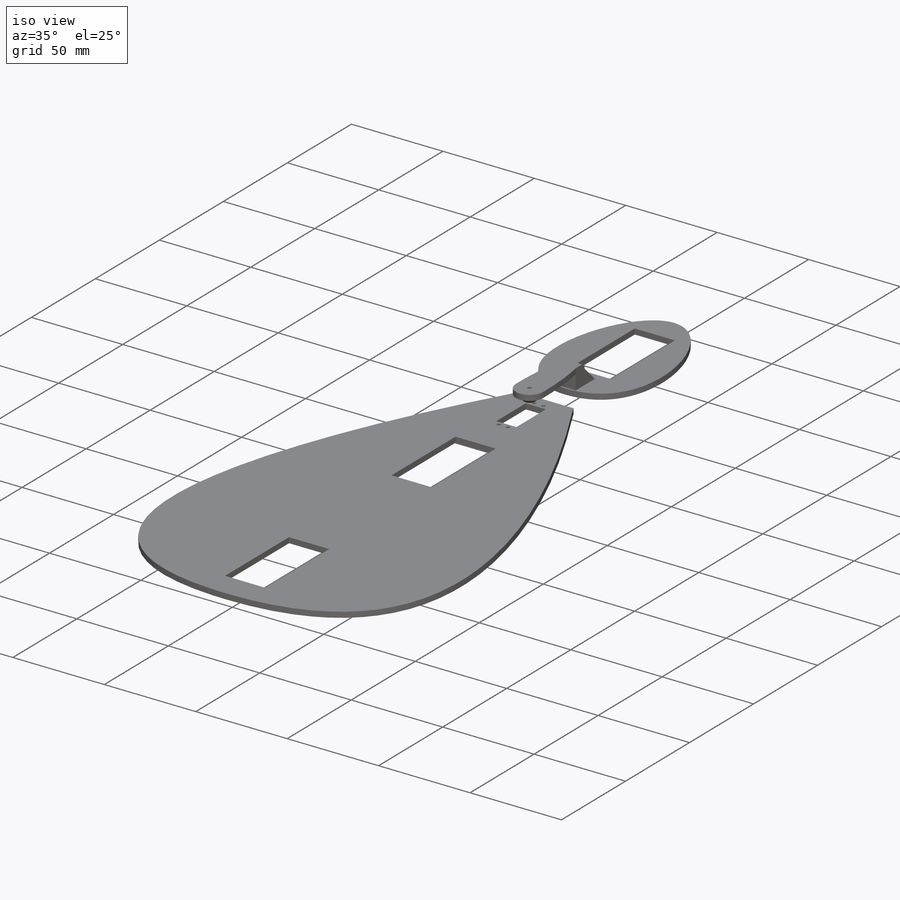
[diagram: iso view]
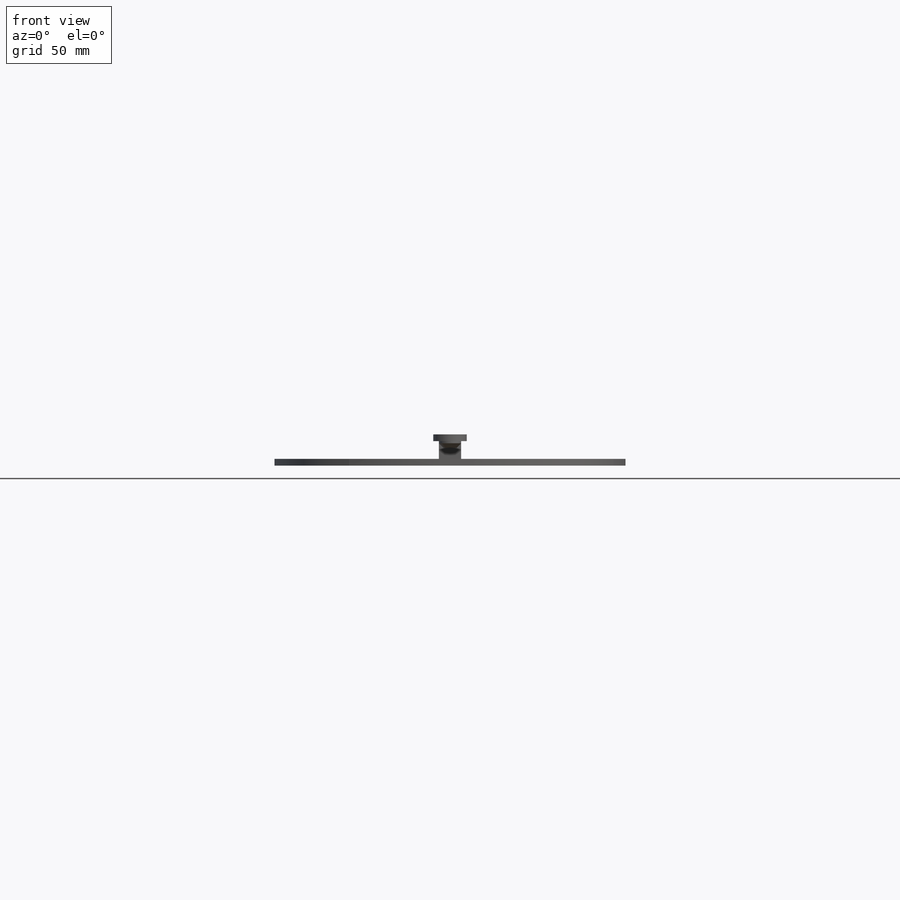
[diagram: front view]
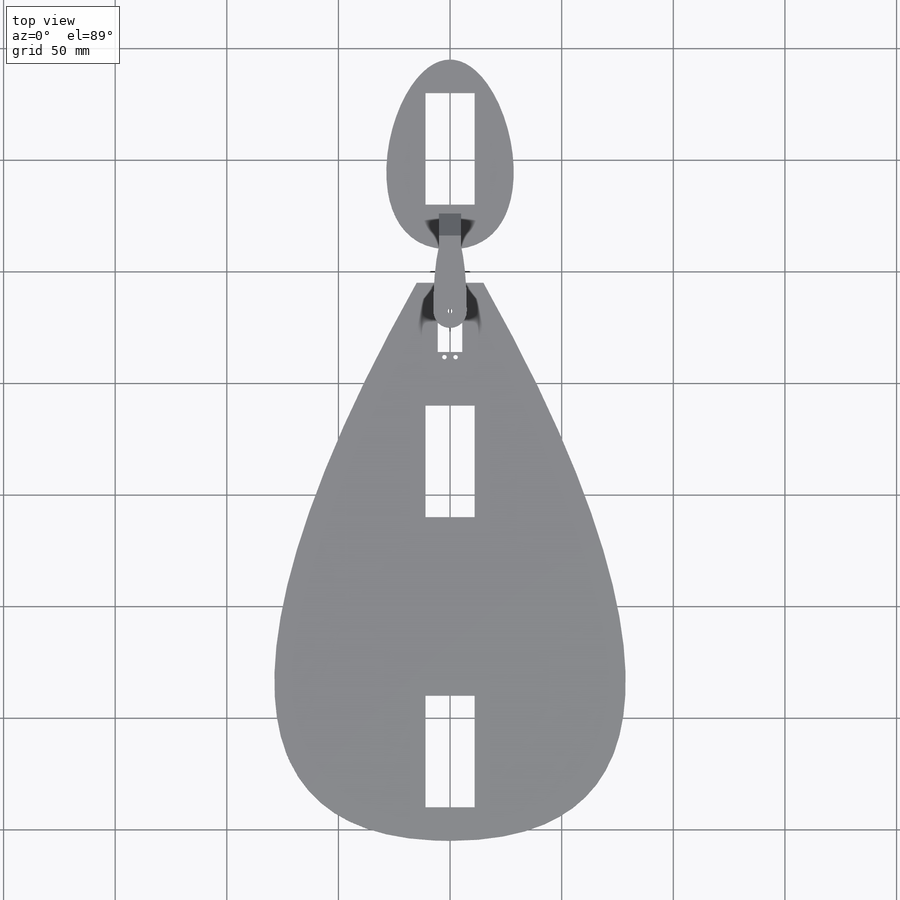
[diagram: top view]
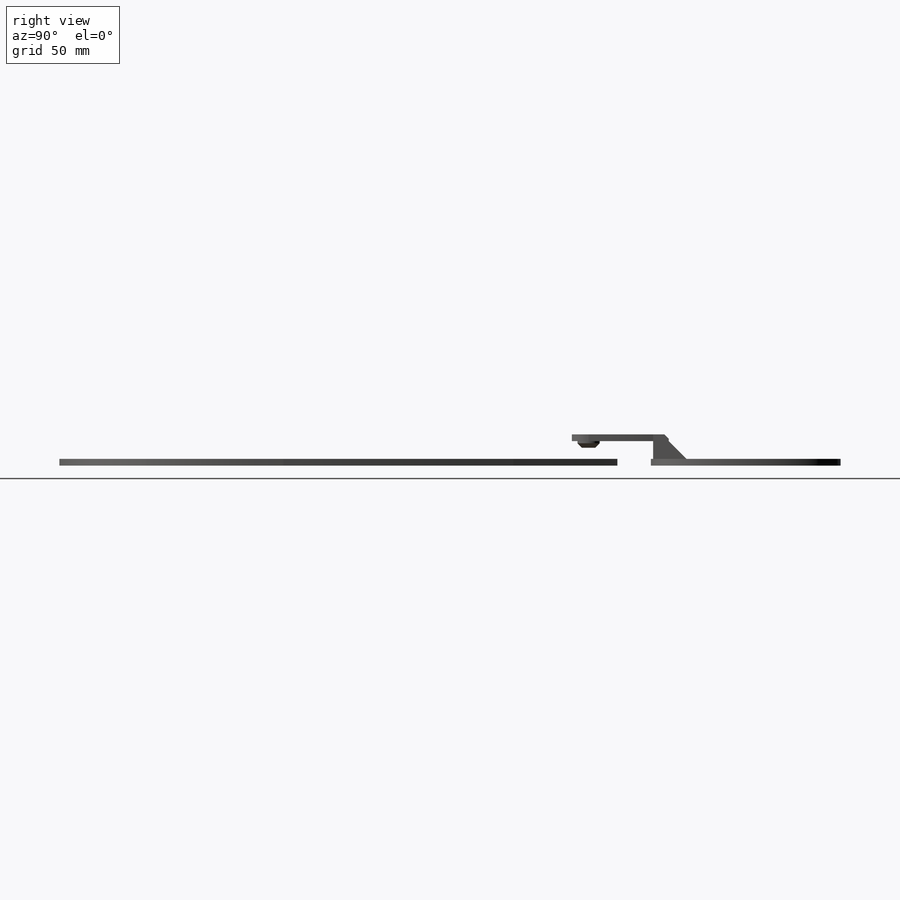
[diagram: right view]
SOLIDWORKS PART (.sldprt)
format: sldprt  version: not decoded by parser v0  size: 279,040 bytes
history: native  units: mm
features: sketch x7, extrude x5, plane x3, chamfer x3, cut_extrude x2, material x1 (+8 scaffold rows collapsed)
feature tree (29):
  scaffold x8  (default folders/planes/origin — collapsed)
  material  "Matériau <non spécifié>"
  plane  "Plan de face"
  plane  "Plan de dessus"
  plane  "Plan de droite"
  sketch  "Esquisse1"  dims[D13=2.0mm D1=22.0mm D2=50.0mm D3=22.0mm D4=50.0mm D5=80.0mm D6=150.0mm D7=30.0mm D8=15.0mm D9=250.0mm D10=40.0mm D11=11.0mm D12=23.0mm D14=2.3mm D15=2.5mm D16=8.0mm D17=15.0mm D18=80.0mm D19=22.0mm D20=50.0mm D21=14.0mm]
  extrude  "Boss.-Extru.1"  Depth=3mm
  sketch  "Esquisse2"  dims[D1=15.0mm D2=85.0mm D3=22.0mm D4=50.0mm D5=15.0mm]
  extrude  "Boss.-Extru.2"  Depth=3mm
  sketch  "Esquisse3"  dims[D1=10.0mm D2=15.0mm D3=4.0mm]
  extrude  "Boss.-Extru.3"  Depth=8mm
  chamfer  "Chanfrein1"  Distance=8mm Angle=45deg
  sketch  "Esquisse4"  dims[D1=15.0mm]
  extrude  "Boss.-Extru.4"  Depth=3mm
  chamfer  "Chanfrein2"  Distance=2mm Angle=45deg
  sketch  "Esquisse6"  dims[D1=2.0mm]
  cut_extrude  "Enlèv. mat.-Extru.1"  [1 undecoded]
  sketch  "Esquisse7"  dims[D1=4.0mm]
  cut_extrude  "Enlèv. mat.-Extru.2"  Depth=2mm
  sketch  "Esquisse8"  dims[D1=10.0mm]
  extrude  "Boss.-Extru.6"  Depth=3mm
  chamfer  "Chanfrein4"  Distance=2mm Angle=45deg
decode coverage: 16 of 17 modeling features carry decoded parameters
note: 1 parameter value undecoded
note: suppression state not decoded; provenance and decode notes live in map.json
